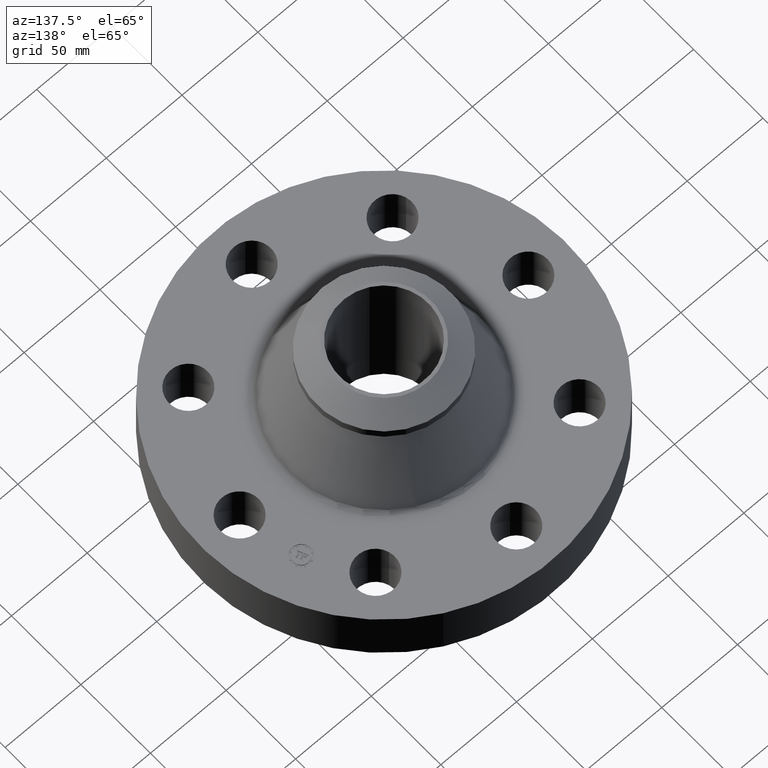
[diagram: clean part render]
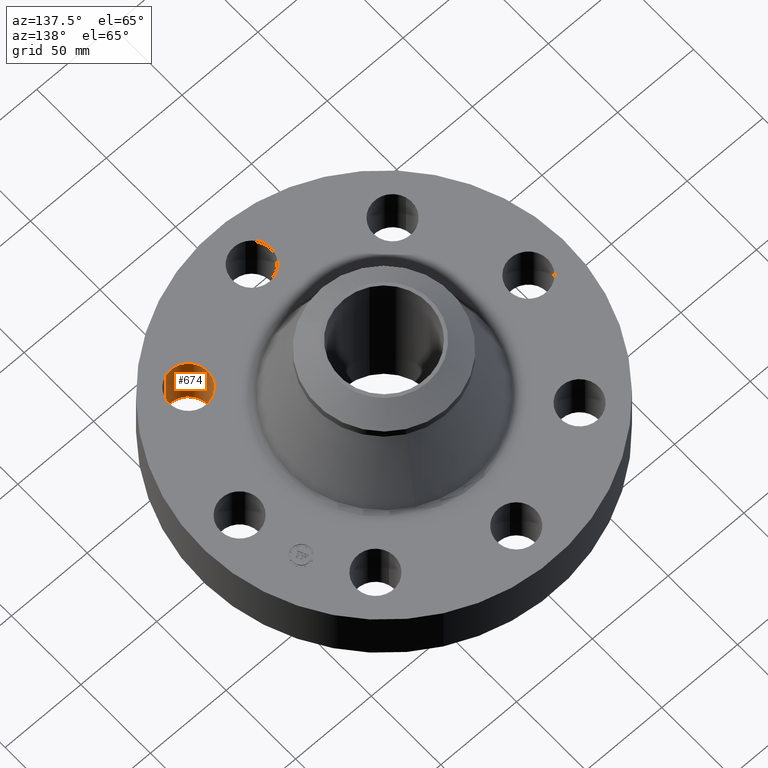
[diagram: same view with one face highlighted and labeled with its STEP entity id]
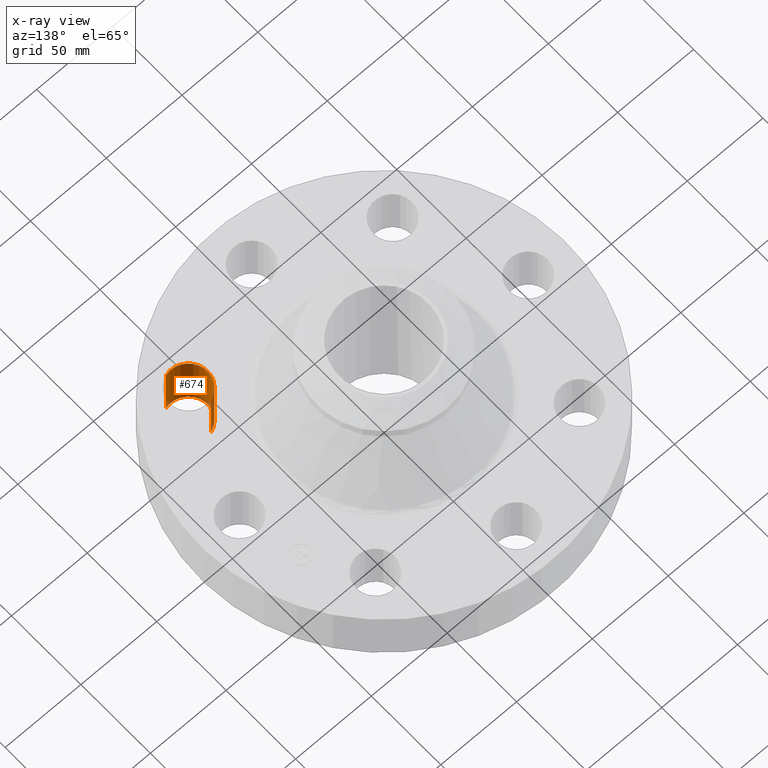
[diagram: x-ray of the same camera — body ghosted, the highlighted face saturated]
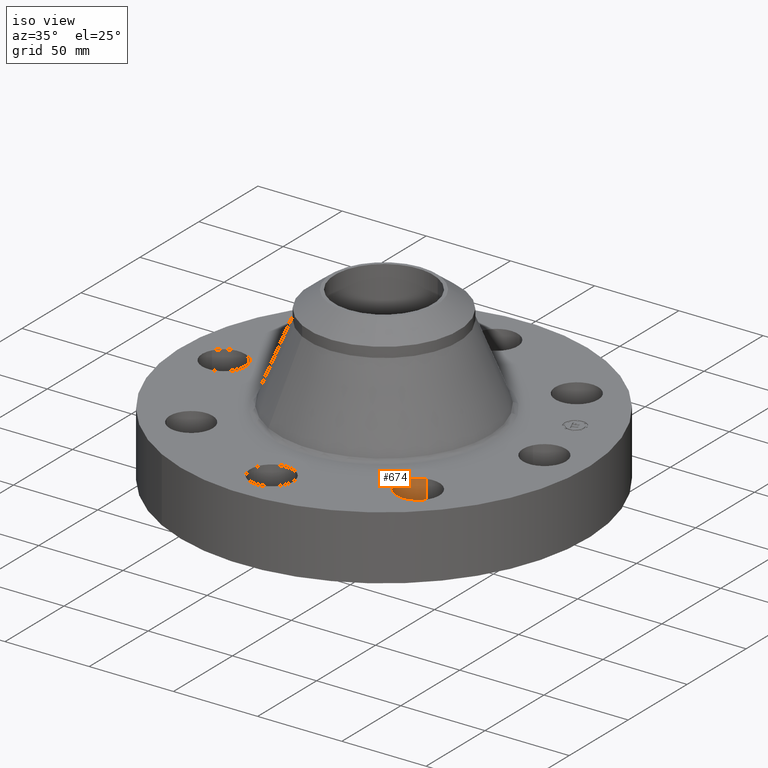
[diagram: same view with one face highlighted and labeled with its STEP entity id]
A machine part, auxiliary view. The second image highlights one B-rep face of the part: STEP entity #674.
The next image is the same camera in x-ray: the body ghosted, the highlighted face saturated — about 3% of this face is hidden behind the body in this view.
A second angle (iso view) of the same face is appended — the face is thin or edge-on in the first view.
In plain terms, the highlighted cylindrical surface (edge-blend (fillet) strip) has radius 12.7 mm, axis along (0, -0, -1).
Its self-contained STEP definition (entity closure, byte-faithful):
#192=AXIS2_PLACEMENT_3D('Circle Axis2P3D',#190,#191,$) ;
#362=AXIS2_PLACEMENT_3D('Circle Axis2P3D',#360,#361,$) ;
#666=AXIS2_PLACEMENT_3D('Cylinder Axis2P3D',#663,#664,#665) ;
#185=CARTESIAN_POINT('Vertex',(2.51088066386,-2.17187561443,0.)) ;
#187=CARTESIAN_POINT('Vertex',(2.79242019506,-3.13142524449,0.)) ;
#190=CARTESIAN_POINT('Axis2P3D Location',(2.6516504295,-2.65165042945,0.)) ;
#360=CARTESIAN_POINT('Axis2P3D Location',(2.65165042946,-2.65165042946,1.50000000001)) ;
#364=CARTESIAN_POINT('Vertex',(2.79242019503,-3.13142524445,1.49999999999)) ;
#366=CARTESIAN_POINT('Vertex',(2.51088066389,-2.17187561447,1.49999999999)) ;
#639=CARTESIAN_POINT('Line Origine',(2.51088066389,-2.17187561447,0.749999999997)) ;
#644=CARTESIAN_POINT('Line Origine',(2.79242019503,-3.13142524445,0.749999999997)) ;
#663=CARTESIAN_POINT('Axis2P3D Location',(2.65165042946,-2.65165042946,1.49606299213)) ;
#191=DIRECTION('Axis2P3D Direction',(0.,0.,-0.0393700787402)) ;
#361=DIRECTION('Axis2P3D Direction',(0.,0.,-0.0393700787402)) ;
#640=DIRECTION('Vector Direction',(0.,0.,-0.0393700787402)) ;
#645=DIRECTION('Vector Direction',(0.,0.,-0.0393700787402)) ;
#664=DIRECTION('Axis2P3D Direction',(0.,-0.,-0.0393700787402)) ;
#665=DIRECTION('Axis2P3D XDirection',(0.0110842335096,-0.0377775444876,0.)) ;
#641=VECTOR('Line Direction',#640,0.0393700787402) ;
#646=VECTOR('Line Direction',#645,0.0393700787402) ;
#669=ORIENTED_EDGE('',*,*,#648,.F.) ;
#670=ORIENTED_EDGE('',*,*,#194,.T.) ;
#671=ORIENTED_EDGE('',*,*,#643,.T.) ;
#672=ORIENTED_EDGE('',*,*,#368,.F.) ;
#674=ADVANCED_FACE('PartBody',(#673),#667,.F.) ;
#193=CIRCLE('generated circle',#192,0.500000000045) ;
#363=CIRCLE('generated circle',#362,0.50000000001) ;
#667=CYLINDRICAL_SURFACE('generated cylinder',#666,0.500000000002) ;
#194=EDGE_CURVE('',#188,#186,#193,.T.) ;
#368=EDGE_CURVE('',#365,#367,#363,.T.) ;
#643=EDGE_CURVE('',#186,#367,#642,.F.) ;
#648=EDGE_CURVE('',#188,#365,#647,.F.) ;
#668=EDGE_LOOP('',(#669,#670,#671,#672)) ;
#673=FACE_OUTER_BOUND('',#668,.T.) ;
#642=LINE('Line',#639,#641) ;
#647=LINE('Line',#644,#646) ;
#186=VERTEX_POINT('',#185) ;
#188=VERTEX_POINT('',#187) ;
#365=VERTEX_POINT('',#364) ;
#367=VERTEX_POINT('',#366) ;